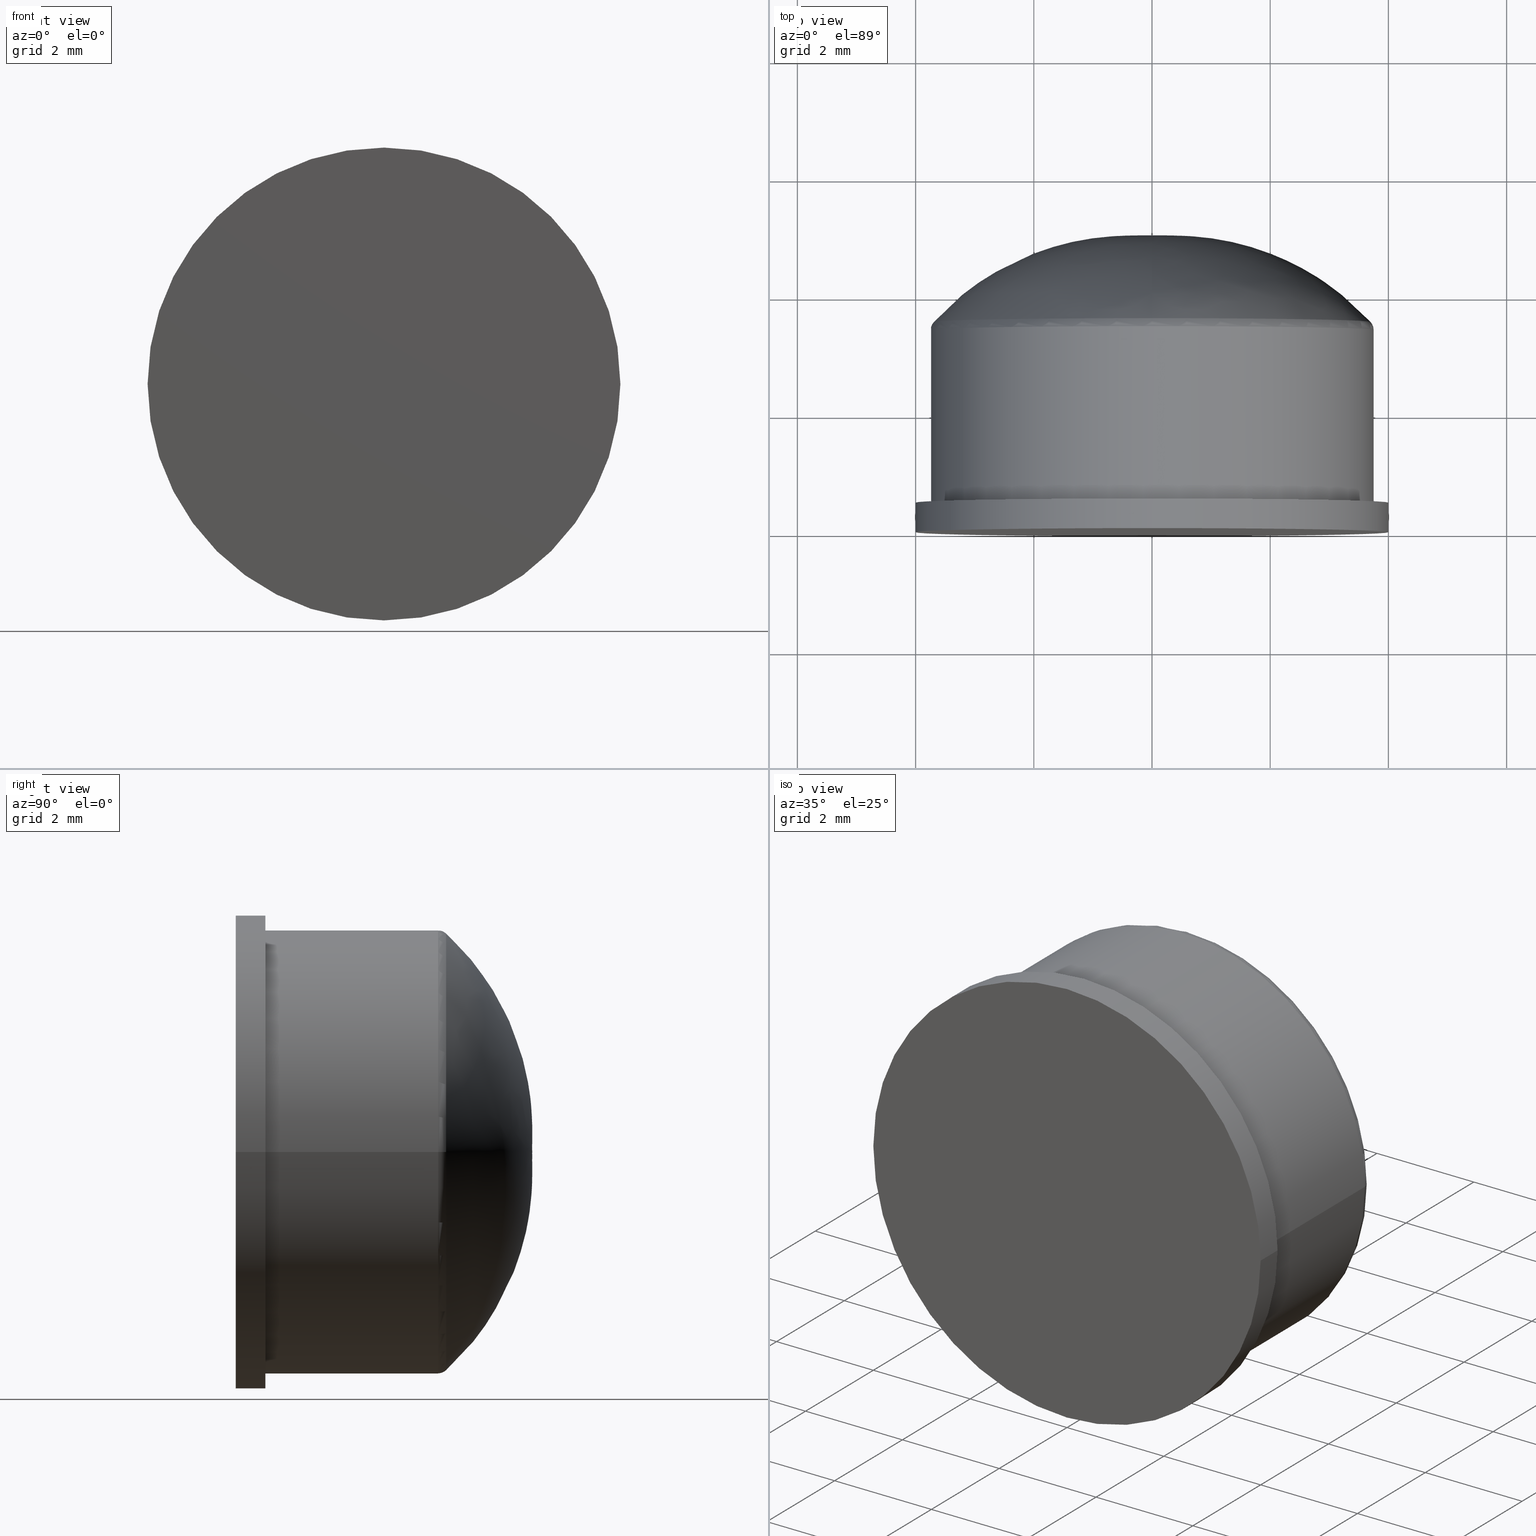
[diagram: canonical four-view strip — front | top / right | iso, engineering-drawing reading convention]
A machine part, canonical four-view strip (front | top / right | iso — engineering-drawing reading convention). The complete STEP part file that produces these views, byte-faithful:
ISO-10303-21;
HEADER;
/* Generated by software containing ST-Developer
 * from STEP Tools, Inc. (www.steptools.com) 
 */

FILE_DESCRIPTION(
/* description */ (''),
/* implementation_level */ '2;1');

FILE_NAME(
/* name */ '\\\\SYNOLOGYNAS\\web\\db2\\PR2-8-5T\\\X2\B3C4BA74\X0\\\PR2
-8-5T.stp',
/* time_stamp */ '2024-10-09T13:15:47+09:00',
/* author */ ('user'),
/* organization */ (''),
/* preprocessor_version */ 'ST-DEVELOPER v15.6',
/* originating_system */ 'Autodesk Inventor 2015',
/* authorisation */ '');

FILE_SCHEMA (('AUTOMOTIVE_DESIGN { 1 0 10303 214 3 1 1 }'));
ENDSEC;

DATA;
#10=MECHANICAL_DESIGN_GEOMETRIC_PRESENTATION_REPRESENTATION('',(#13),#171);
#11=SHAPE_REPRESENTATION_RELATIONSHIP('SRR','None',#180,#12);
#12=ADVANCED_BREP_SHAPE_REPRESENTATION($,(#14),#170);
#13=STYLED_ITEM('',(#189),#14);
#14=MANIFOLD_SOLID_BREP('\X2\C194B9ACB4DC\X0\1',#82);
#15=PLANE('',#90);
#16=PLANE('',#94);
#17=CYLINDRICAL_SURFACE('',#88,3.75);
#18=CYLINDRICAL_SURFACE('',#92,4.);
#19=(
BOUNDED_CURVE()
B_SPLINE_CURVE(2,(#155,#156,#157),.UNSPECIFIED.,.F.,.F.)
B_SPLINE_CURVE_WITH_KNOTS((3,3),(0.742374724795534,1.6556714185691),
 .UNSPECIFIED.)
CURVE()
GEOMETRIC_REPRESENTATION_ITEM()
RATIONAL_B_SPLINE_CURVE((1.,0.897535421861127,1.))
REPRESENTATION_ITEM('')
);
#20=(
BOUNDED_SURFACE()
B_SPLINE_SURFACE(2,2,((#127,#128,#129,#130,#131,#132,#133,#134,#135),(#136,
#137,#138,#139,#140,#141,#142,#143,#144),(#145,#146,#147,#148,#149,#150,
#151,#152,#153)),.UNSPECIFIED.,.F.,.T.,.F.)
B_SPLINE_SURFACE_WITH_KNOTS((3,3),(3,2,2,2,3),(-1.6556714185691,-0.742374724795534),
(-3.14159265358979,-1.5707963267949,0.,1.5707963267949,3.14159265358979),
 .UNSPECIFIED.)
GEOMETRIC_REPRESENTATION_ITEM()
RATIONAL_B_SPLINE_SURFACE(((1.,0.707106781186548,1.,0.707106781186548,1.,
0.707106781186548,1.,0.707106781186548,1.),(0.897535421861127,0.634653383153132,
0.897535421861127,0.634653383153132,0.897535421861127,0.634653383153132,
0.897535421861127,0.634653383153132,0.897535421861127),(1.,0.707106781186548,
1.,0.707106781186548,1.,0.707106781186548,1.,0.707106781186548,1.)))
REPRESENTATION_ITEM('')
SURFACE()
);
#21=FACE_BOUND('',#32,.T.);
#22=FACE_BOUND('',#35,.T.);
#23=FACE_BOUND('',#37,.T.);
#24=FACE_BOUND('',#39,.T.);
#25=FACE_OUTER_BOUND('',#31,.T.);
#26=FACE_OUTER_BOUND('',#33,.T.);
#27=FACE_OUTER_BOUND('',#34,.T.);
#28=FACE_OUTER_BOUND('',#36,.T.);
#29=FACE_OUTER_BOUND('',#38,.T.);
#30=FACE_OUTER_BOUND('',#40,.T.);
#31=EDGE_LOOP('',(#61,#62));
#32=EDGE_LOOP('',(#63));
#33=EDGE_LOOP('',(#64,#65,#66,#67));
#34=EDGE_LOOP('',(#68));
#35=EDGE_LOOP('',(#69));
#36=EDGE_LOOP('',(#70));
#37=EDGE_LOOP('',(#71));
#38=EDGE_LOOP('',(#72));
#39=EDGE_LOOP('',(#73));
#40=EDGE_LOOP('',(#74));
#41=CIRCLE('',#85,3.6973730459566);
#42=CIRCLE('',#86,3.6973730459566);
#43=CIRCLE('',#87,3.75);
#44=CIRCLE('',#89,3.75);
#45=CIRCLE('',#91,4.);
#46=CIRCLE('',#93,4.);
#47=VERTEX_POINT('',#121);
#48=VERTEX_POINT('',#122);
#49=VERTEX_POINT('',#125);
#50=VERTEX_POINT('',#154);
#51=VERTEX_POINT('',#159);
#52=VERTEX_POINT('',#162);
#53=VERTEX_POINT('',#165);
#54=EDGE_CURVE('',#47,#48,#41,.T.);
#55=EDGE_CURVE('',#48,#47,#42,.T.);
#56=EDGE_CURVE('',#49,#49,#43,.T.);
#57=EDGE_CURVE('',#48,#50,#19,.T.);
#58=EDGE_CURVE('',#51,#51,#44,.T.);
#59=EDGE_CURVE('',#52,#52,#45,.T.);
#60=EDGE_CURVE('',#53,#53,#46,.T.);
#61=ORIENTED_EDGE('',*,*,#54,.T.);
#62=ORIENTED_EDGE('',*,*,#55,.T.);
#63=ORIENTED_EDGE('',*,*,#56,.T.);
#64=ORIENTED_EDGE('',*,*,#54,.F.);
#65=ORIENTED_EDGE('',*,*,#55,.F.);
#66=ORIENTED_EDGE('',*,*,#57,.T.);
#67=ORIENTED_EDGE('',*,*,#57,.F.);
#68=ORIENTED_EDGE('',*,*,#58,.F.);
#69=ORIENTED_EDGE('',*,*,#56,.F.);
#70=ORIENTED_EDGE('',*,*,#59,.F.);
#71=ORIENTED_EDGE('',*,*,#58,.T.);
#72=ORIENTED_EDGE('',*,*,#59,.T.);
#73=ORIENTED_EDGE('',*,*,#60,.F.);
#74=ORIENTED_EDGE('',*,*,#60,.T.);
#75=TOROIDAL_SURFACE('',#84,3.55,0.2);
#76=ADVANCED_FACE('',(#25,#21),#75,.T.);
#77=ADVANCED_FACE('',(#26),#20,.F.);
#78=ADVANCED_FACE('',(#27,#22),#17,.T.);
#79=ADVANCED_FACE('',(#28,#23),#15,.T.);
#80=ADVANCED_FACE('',(#29,#24),#18,.T.);
#81=ADVANCED_FACE('',(#30),#16,.T.);
#82=CLOSED_SHELL('',(#76,#77,#78,#79,#80,#81));
#83=AXIS2_PLACEMENT_3D('placement',#119,#95,#96);
#84=AXIS2_PLACEMENT_3D('',#120,#97,#98);
#85=AXIS2_PLACEMENT_3D('',#123,#99,#100);
#86=AXIS2_PLACEMENT_3D('',#124,#101,#102);
#87=AXIS2_PLACEMENT_3D('',#126,#103,#104);
#88=AXIS2_PLACEMENT_3D('',#158,#105,#106);
#89=AXIS2_PLACEMENT_3D('',#160,#107,#108);
#90=AXIS2_PLACEMENT_3D('',#161,#109,#110);
#91=AXIS2_PLACEMENT_3D('',#163,#111,#112);
#92=AXIS2_PLACEMENT_3D('',#164,#113,#114);
#93=AXIS2_PLACEMENT_3D('',#166,#115,#116);
#94=AXIS2_PLACEMENT_3D('',#167,#117,#118);
#95=DIRECTION('axis',(0.,0.,1.));
#96=DIRECTION('refdir',(1.,0.,0.));
#97=DIRECTION('center_axis',(3.33066907387547E-16,-1.,0.));
#98=DIRECTION('ref_axis',(0.,0.,-1.));
#99=DIRECTION('center_axis',(3.33066907387547E-16,-1.,0.));
#100=DIRECTION('ref_axis',(-1.,-3.00273467357934E-16,1.22464679914735E-16));
#101=DIRECTION('center_axis',(3.33066907387547E-16,-1.,0.));
#102=DIRECTION('ref_axis',(-1.,-3.00273467357934E-16,1.22464679914735E-16));
#103=DIRECTION('center_axis',(-3.33066907387547E-16,1.,0.));
#104=DIRECTION('ref_axis',(-1.,-3.33066907387547E-16,1.22464679914735E-16));
#105=DIRECTION('center_axis',(3.33066907387547E-16,-1.,0.));
#106=DIRECTION('ref_axis',(1.,6.39024356686511E-16,0.));
#107=DIRECTION('center_axis',(3.33066907387547E-16,-1.,0.));
#108=DIRECTION('ref_axis',(1.,3.33066907387547E-16,0.));
#109=DIRECTION('center_axis',(-3.33066907387547E-16,1.,0.));
#110=DIRECTION('ref_axis',(0.,0.,1.));
#111=DIRECTION('center_axis',(3.33066907387547E-16,-1.,0.));
#112=DIRECTION('ref_axis',(1.,3.33066907387547E-16,0.));
#113=DIRECTION('center_axis',(3.33066907387547E-16,-1.,0.));
#114=DIRECTION('ref_axis',(1.,6.39024356686511E-16,0.));
#115=DIRECTION('center_axis',(3.33066907387547E-16,-1.,0.));
#116=DIRECTION('ref_axis',(1.,3.33066907387547E-16,0.));
#117=DIRECTION('center_axis',(3.33066907387547E-16,-1.,0.));
#118=DIRECTION('ref_axis',(0.,0.,-1.));
#119=CARTESIAN_POINT('',(0.,0.,0.));
#120=CARTESIAN_POINT('Origin',(-1.1401444300645E-15,3.42316935359135,0.));
#121=CARTESIAN_POINT('',(3.6973730459566,3.55837728725455,-6.16297582203915E-32));
#122=CARTESIAN_POINT('',(-1.18517771838396E-15,3.55837728725455,3.6973730459566));
#123=CARTESIAN_POINT('Origin',(-1.18517771838396E-15,3.55837728725455,0.));
#124=CARTESIAN_POINT('Origin',(-1.18517771838396E-15,3.55837728725455,0.));
#125=CARTESIAN_POINT('',(3.75,3.42316935359135,-9.18485099360515E-16));
#126=CARTESIAN_POINT('Origin',(-1.1401444300645E-15,3.42316935359135,0.));
#127=CARTESIAN_POINT('Ctrl Pts',(-1.66533453693773E-15,5.,-6.93889390390723E-17));
#128=CARTESIAN_POINT('Ctrl Pts',(-1.59594559789866E-15,5.,-6.9388939039072E-17));
#129=CARTESIAN_POINT('Ctrl Pts',(-1.59594559789866E-15,5.,2.46519032881566E-31));
#130=CARTESIAN_POINT('Ctrl Pts',(-1.59594559789866E-15,5.,6.93889390390725E-17));
#131=CARTESIAN_POINT('Ctrl Pts',(-1.66533453693773E-15,5.,6.93889390390723E-17));
#132=CARTESIAN_POINT('Ctrl Pts',(-1.73472347597681E-15,5.,6.9388939039072E-17));
#133=CARTESIAN_POINT('Ctrl Pts',(-1.73472347597681E-15,5.,-2.46519032881566E-31));
#134=CARTESIAN_POINT('Ctrl Pts',(-1.73472347597681E-15,5.,-6.93889390390725E-17));
#135=CARTESIAN_POINT('Ctrl Pts',(-1.66533453693773E-15,5.,-6.93889390390723E-17));
#136=CARTESIAN_POINT('Ctrl Pts',(-1.7277558542482E-15,5.18741374758626,
2.20280765759974));
#137=CARTESIAN_POINT('Ctrl Pts',(-2.20280765759974,5.18741374758626,2.20280765759974));
#138=CARTESIAN_POINT('Ctrl Pts',(-2.20280765759974,5.18741374758626,2.46519032881566E-31));
#139=CARTESIAN_POINT('Ctrl Pts',(-2.20280765759974,5.18741374758626,-2.20280765759974));
#140=CARTESIAN_POINT('Ctrl Pts',(-1.7277558542482E-15,5.18741374758626,
-2.20280765759974));
#141=CARTESIAN_POINT('Ctrl Pts',(2.20280765759974,5.18741374758626,-2.20280765759974));
#142=CARTESIAN_POINT('Ctrl Pts',(2.20280765759974,5.18741374758626,-2.46519032881566E-31));
#143=CARTESIAN_POINT('Ctrl Pts',(2.20280765759974,5.18741374758626,2.20280765759974));
#144=CARTESIAN_POINT('Ctrl Pts',(-1.7277558542482E-15,5.18741374758626,
2.20280765759974));
#145=CARTESIAN_POINT('Ctrl Pts',(-1.18517771838396E-15,3.55837728725455,
3.6973730459566));
#146=CARTESIAN_POINT('Ctrl Pts',(-3.6973730459566,3.55837728725455,3.6973730459566));
#147=CARTESIAN_POINT('Ctrl Pts',(-3.69737304595661,3.55837728725455,0.));
#148=CARTESIAN_POINT('Ctrl Pts',(-3.6973730459566,3.55837728725455,-3.6973730459566));
#149=CARTESIAN_POINT('Ctrl Pts',(-1.18517771838396E-15,3.55837728725455,
-3.6973730459566));
#150=CARTESIAN_POINT('Ctrl Pts',(3.6973730459566,3.55837728725455,-3.6973730459566));
#151=CARTESIAN_POINT('Ctrl Pts',(3.6973730459566,3.55837728725455,0.));
#152=CARTESIAN_POINT('Ctrl Pts',(3.6973730459566,3.55837728725455,3.6973730459566));
#153=CARTESIAN_POINT('Ctrl Pts',(-1.18517771838396E-15,3.55837728725455,
3.6973730459566));
#154=CARTESIAN_POINT('',(-1.66533453693773E-15,5.,0.));
#155=CARTESIAN_POINT('Ctrl Pts',(-1.18517771838396E-15,3.55837728725455,
3.6973730459566));
#156=CARTESIAN_POINT('Ctrl Pts',(-1.7277558542482E-15,5.18741374758626,
2.20280765759974));
#157=CARTESIAN_POINT('Ctrl Pts',(-1.66533453693773E-15,5.,-6.93889390390723E-17));
#158=CARTESIAN_POINT('Origin',(-6.66133814775094E-16,2.,0.));
#159=CARTESIAN_POINT('',(3.75,0.5,0.));
#160=CARTESIAN_POINT('Origin',(-1.66533453693773E-16,0.499999999999999,
0.));
#161=CARTESIAN_POINT('Origin',(4.,0.5,0.));
#162=CARTESIAN_POINT('',(4.,0.5,0.));
#163=CARTESIAN_POINT('Origin',(-1.66533453693773E-16,0.499999999999999,
0.));
#164=CARTESIAN_POINT('Origin',(-8.32667268468864E-17,0.249999999999999,
0.));
#165=CARTESIAN_POINT('',(4.,0.,0.));
#166=CARTESIAN_POINT('Origin',(3.20474742746036E-31,-1.33226762955019E-15,
0.));
#167=CARTESIAN_POINT('Origin',(0.,0.,0.));
#168=UNCERTAINTY_MEASURE_WITH_UNIT(LENGTH_MEASURE(0.01),#172,
'DISTANCE_ACCURACY_VALUE',
'Maximum model space distance between geometric entities at asserted c
onnectivities');
#169=UNCERTAINTY_MEASURE_WITH_UNIT(LENGTH_MEASURE(1.E-6),#172,
'DISTANCE_ACCURACY_VALUE',
'Maximum model space distance between geometric entities at asserted c
onnectivities');
#170=(
GEOMETRIC_REPRESENTATION_CONTEXT(3)
GLOBAL_UNCERTAINTY_ASSIGNED_CONTEXT((#168))
GLOBAL_UNIT_ASSIGNED_CONTEXT((#172,#175,#173))
REPRESENTATION_CONTEXT('','3D')
);
#171=(
GEOMETRIC_REPRESENTATION_CONTEXT(3)
GLOBAL_UNCERTAINTY_ASSIGNED_CONTEXT((#169))
GLOBAL_UNIT_ASSIGNED_CONTEXT((#172,#175,#173))
REPRESENTATION_CONTEXT('','3D')
);
#172=(
LENGTH_UNIT()
NAMED_UNIT(*)
SI_UNIT(.MILLI.,.METRE.)
);
#173=(
NAMED_UNIT(*)
SI_UNIT($,.STERADIAN.)
SOLID_ANGLE_UNIT()
);
#174=DIMENSIONAL_EXPONENTS(0.,0.,0.,0.,0.,0.,0.);
#175=(
CONVERSION_BASED_UNIT('degree',#177)
NAMED_UNIT(#174)
PLANE_ANGLE_UNIT()
);
#176=(
NAMED_UNIT(*)
PLANE_ANGLE_UNIT()
SI_UNIT($,.RADIAN.)
);
#177=PLANE_ANGLE_MEASURE_WITH_UNIT(PLANE_ANGLE_MEASURE(0.01745329252),#176);
#178=SHAPE_DEFINITION_REPRESENTATION(#179,#180);
#179=PRODUCT_DEFINITION_SHAPE('',$,#182);
#180=SHAPE_REPRESENTATION('',(#83),#170);
#181=PRODUCT_DEFINITION_CONTEXT('part definition',#186,'design');
#182=PRODUCT_DEFINITION('PR2-8-5T','PR2-8-5T',#183,#181);
#183=PRODUCT_DEFINITION_FORMATION('',$,#188);
#184=PRODUCT_RELATED_PRODUCT_CATEGORY('PR2-8-5T','PR2-8-5T',(#188));
#185=APPLICATION_PROTOCOL_DEFINITION('international standard',
'automotive_design',2009,#186);
#186=APPLICATION_CONTEXT(
'Core Data for Automotive Mechanical Design Process');
#187=PRODUCT_CONTEXT('part definition',#186,'mechanical');
#188=PRODUCT('PR2-8-5T','PR2-8-5T',$,(#187));
#189=PRESENTATION_STYLE_ASSIGNMENT((#190));
#190=SURFACE_STYLE_USAGE(.BOTH.,#191);
#191=SURFACE_SIDE_STYLE($,(#192));
#192=SURFACE_STYLE_FILL_AREA(#193);
#193=FILL_AREA_STYLE($,(#194));
#194=FILL_AREA_STYLE_COLOUR($,#195);
#195=COLOUR_RGB('',1.,1.,1.);
ENDSEC;
END-ISO-10303-21;
